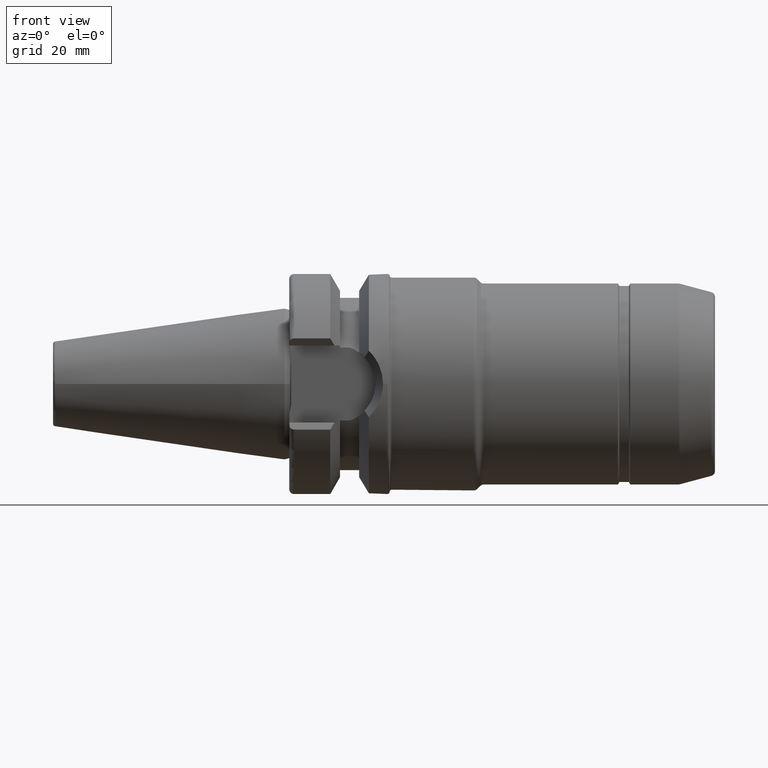
[diagram: clean part render]
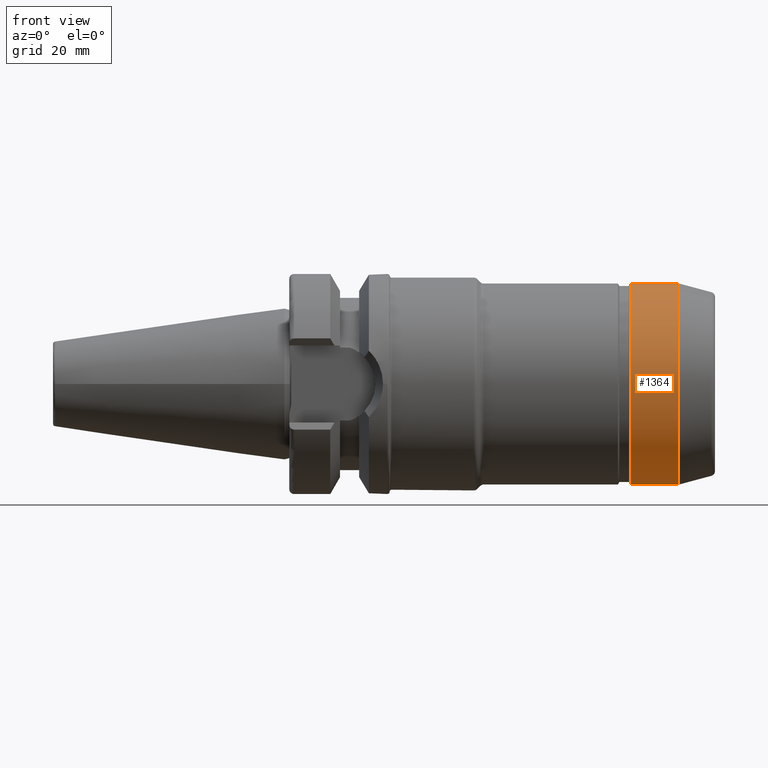
[diagram: same view with one face highlighted and labeled with its STEP entity id]
A machine part, front view. The second image highlights one B-rep face of the part: STEP entity #1364.
In plain terms, the highlighted cylindrical surface (bore or boss wall) has radius 21 mm, axis along (1, 0, 0).
Its self-contained STEP definition (entity closure, byte-faithful):
#119=FACE_OUTER_BOUND('',#196,.T.);
#196=EDGE_LOOP('',(#940,#941,#942,#943,#944,#945));
#274=LINE('',#2144,#344);
#344=VECTOR('',#1710,21.);
#428=CIRCLE('',#1480,21.);
#429=CIRCLE('',#1481,21.);
#430=CIRCLE('',#1483,21.);
#431=CIRCLE('',#1484,21.);
#539=VERTEX_POINT('',#2137);
#540=VERTEX_POINT('',#2139);
#541=VERTEX_POINT('',#2143);
#542=VERTEX_POINT('',#2145);
#697=EDGE_CURVE('',#539,#540,#428,.T.);
#698=EDGE_CURVE('',#540,#539,#429,.T.);
#699=EDGE_CURVE('',#539,#541,#274,.T.);
#700=EDGE_CURVE('',#541,#542,#430,.T.);
#701=EDGE_CURVE('',#542,#541,#431,.T.);
#940=ORIENTED_EDGE('',*,*,#698,.F.);
#941=ORIENTED_EDGE('',*,*,#697,.F.);
#942=ORIENTED_EDGE('',*,*,#699,.T.);
#943=ORIENTED_EDGE('',*,*,#700,.T.);
#944=ORIENTED_EDGE('',*,*,#701,.T.);
#945=ORIENTED_EDGE('',*,*,#699,.F.);
#1334=CYLINDRICAL_SURFACE('',#1482,21.);
#1364=ADVANCED_FACE('',(#119),#1334,.T.);
#1480=AXIS2_PLACEMENT_3D('',#2140,#1704,#1705);
#1481=AXIS2_PLACEMENT_3D('',#2141,#1706,#1707);
#1482=AXIS2_PLACEMENT_3D('',#2142,#1708,#1709);
#1483=AXIS2_PLACEMENT_3D('',#2146,#1711,#1712);
#1484=AXIS2_PLACEMENT_3D('',#2147,#1713,#1714);
#1704=DIRECTION('center_axis',(1.,0.,0.));
#1705=DIRECTION('ref_axis',(0.,1.22464679914735E-16,1.));
#1706=DIRECTION('center_axis',(1.,0.,0.));
#1707=DIRECTION('ref_axis',(0.,1.22464679914735E-16,1.));
#1708=DIRECTION('center_axis',(1.,0.,0.));
#1709=DIRECTION('ref_axis',(0.,0.,-1.));
#1710=DIRECTION('',(-1.,0.,0.));
#1711=DIRECTION('center_axis',(1.,0.,0.));
#1712=DIRECTION('ref_axis',(0.,0.,-1.));
#1713=DIRECTION('center_axis',(1.,0.,0.));
#1714=DIRECTION('ref_axis',(0.,0.,-1.));
#2137=CARTESIAN_POINT('',(82.4042458872748,-2.57175827820944E-15,21.));
#2139=CARTESIAN_POINT('',(82.4042458872748,0.,-21.));
#2140=CARTESIAN_POINT('Origin',(82.4042458872748,0.,0.));
#2141=CARTESIAN_POINT('Origin',(82.4042458872748,0.,0.));
#2142=CARTESIAN_POINT('Origin',(77.4122867597285,0.,0.));
#2143=CARTESIAN_POINT('',(72.2886751345948,-2.57175827820944E-15,21.));
#2144=CARTESIAN_POINT('',(77.4122867597285,-2.57175827820944E-15,21.));
#2145=CARTESIAN_POINT('',(72.2886751345948,0.,-21.));
#2146=CARTESIAN_POINT('Origin',(72.2886751345948,0.,0.));
#2147=CARTESIAN_POINT('Origin',(72.2886751345948,0.,0.));